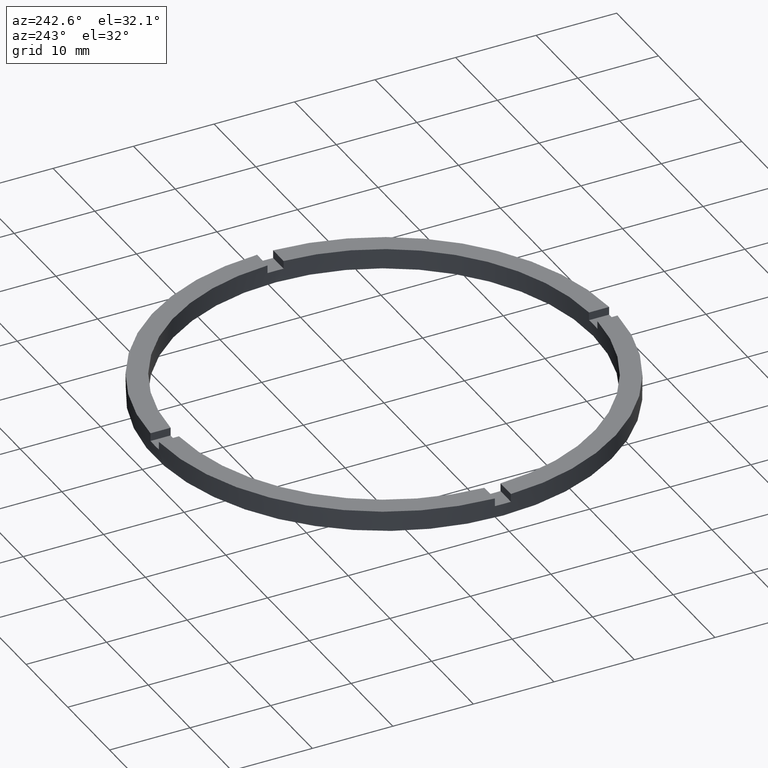
[diagram: clean part render]
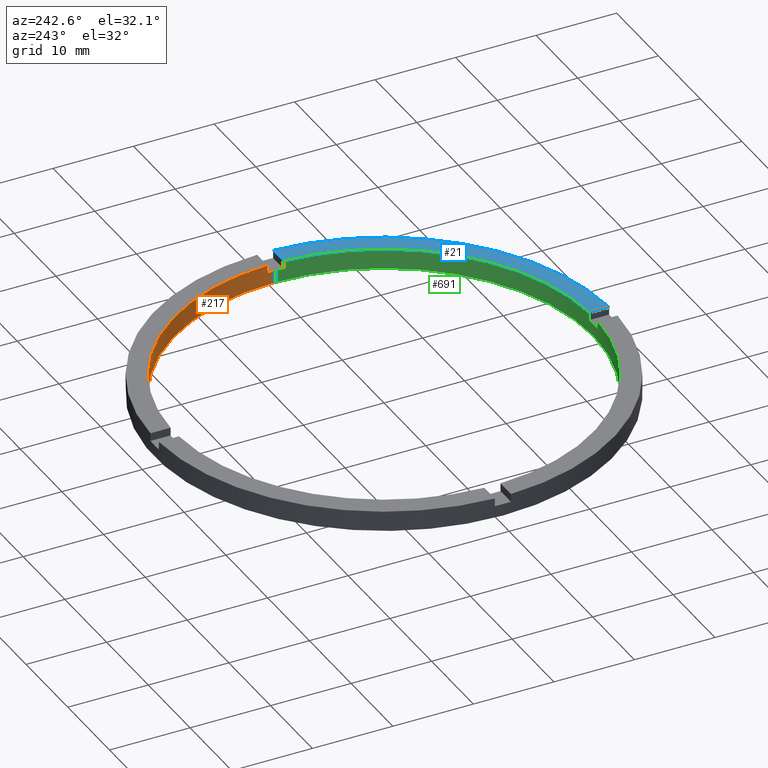
[diagram: same view with three faces highlighted in distinct colors, each labeled with its STEP entity id]
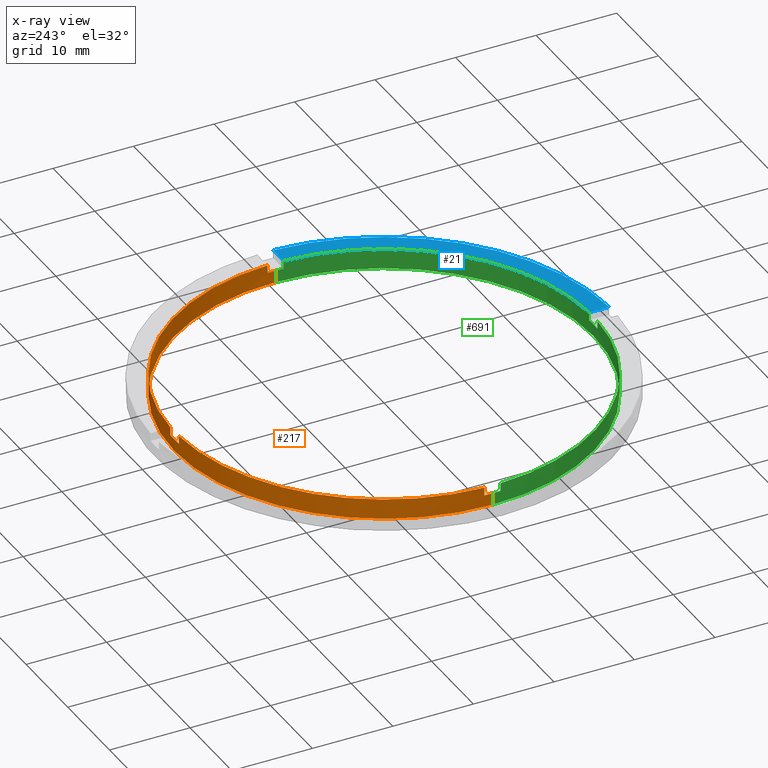
[diagram: x-ray of the same camera — body ghosted, the three highlighted faces saturated]
A machine part, auxiliary view with three faces highlighted in distinct colors.
The next image is the same camera in x-ray (body ghosted, the three faces saturated) — at least one of them is partly hidden behind the body in this view.
Their STEP definitions:

[orange] entity #217 — the highlighted cylindrical surface (partial cylindrical patch) has radius 26 mm, axis along (-0, -0, -1).
#15 = DIRECTION ( 'NONE',  ( 1.000000000000000000, 0.000000000000000000, 0.000000000000000000 ) ) ;
#24 = CARTESIAN_POINT ( 'NONE',  ( 26.00000000000000355, 3.184081677783118585E-15, 1.500000000000000000 ) ) ;
#33 = EDGE_CURVE ( 'NONE', #51, #586, #41, .T. ) ;
#41 = LINE ( 'NONE', #137, #301 ) ;
#50 = AXIS2_PLACEMENT_3D ( 'NONE', #88, #527, #15 ) ;
#51 = VERTEX_POINT ( 'NONE', #87 ) ;
#74 = VERTEX_POINT ( 'NONE', #720 ) ;
#76 = CARTESIAN_POINT ( 'NONE',  ( 25.98076211353317078, 0.9999999999998430145, 2.500000000000000000 ) ) ;
#87 = CARTESIAN_POINT ( 'NONE',  ( 0.9999999999999735767, 25.98076211353316367, 1.500000000000000000 ) ) ;
#88 = CARTESIAN_POINT ( 'NONE',  ( 0.000000000000000000, 0.000000000000000000, 2.500000000000000000 ) ) ;
#94 = CARTESIAN_POINT ( 'NONE',  ( 25.98076211353317078, 0.9999999999998430145, 1.500000000000000000 ) ) ;
#98 = VERTEX_POINT ( 'NONE', #24 ) ;
#102 = CARTESIAN_POINT ( 'NONE',  ( 25.98076211353317078, 0.9999999999998430145, 2.500000000000000000 ) ) ;
#106 = CARTESIAN_POINT ( 'NONE',  ( 0.000000000000000000, 0.000000000000000000, 0.000000000000000000 ) ) ;
#107 = ORIENTED_EDGE ( 'NONE', *, *, #553, .F. ) ;
#131 = VECTOR ( 'NONE', #222, 1000.000000000000000 ) ;
#137 = CARTESIAN_POINT ( 'NONE',  ( 0.9999999999999735767, 25.98076211353316367, 2.500000000000000000 ) ) ;
#142 = LINE ( 'NONE', #436, #683 ) ;
#154 = EDGE_CURVE ( 'NONE', #98, #354, #404, .T. ) ;
#172 = DIRECTION ( 'NONE',  ( 0.000000000000000000, 0.000000000000000000, 1.000000000000000000 ) ) ;
#176 = VECTOR ( 'NONE', #759, 1000.000000000000000 ) ;
#181 = VECTOR ( 'NONE', #347, 1000.000000000000000 ) ;
#188 = LINE ( 'NONE', #633, #176 ) ;
#202 = DIRECTION ( 'NONE',  ( -0.000000000000000000, -0.000000000000000000, -1.000000000000000000 ) ) ;
#212 = ORIENTED_EDGE ( 'NONE', *, *, #542, .T. ) ;
#217 = ADVANCED_FACE ( 'NONE', ( #418 ), #407, .F. ) ;
#218 = VERTEX_POINT ( 'NONE', #626 ) ;
#221 = DIRECTION ( 'NONE',  ( -0.000000000000000000, -0.000000000000000000, -1.000000000000000000 ) ) ;
#222 = DIRECTION ( 'NONE',  ( -0.000000000000000000, -0.000000000000000000, -1.000000000000000000 ) ) ;
#224 = CARTESIAN_POINT ( 'NONE',  ( -26.00000000000000355, 0.000000000000000000, 0.000000000000000000 ) ) ;
#230 = CARTESIAN_POINT ( 'NONE',  ( -1.000000000000026423, 25.98076211353316367, 1.500000000000000000 ) ) ;
#243 = CARTESIAN_POINT ( 'NONE',  ( 0.000000000000000000, 0.000000000000000000, 1.500000000000000000 ) ) ;
#256 = EDGE_CURVE ( 'NONE', #98, #74, #142, .T. ) ;
#257 = DIRECTION ( 'NONE',  ( -0.000000000000000000, -0.000000000000000000, -1.000000000000000000 ) ) ;
#265 = DIRECTION ( 'NONE',  ( 0.000000000000000000, 0.000000000000000000, 1.000000000000000000 ) ) ;
#268 = EDGE_CURVE ( 'NONE', #317, #617, #666, .T. ) ;
#274 = CARTESIAN_POINT ( 'NONE',  ( -26.00000000000000355, 0.000000000000000000, 1.500000000000000000 ) ) ;
#287 = AXIS2_PLACEMENT_3D ( 'NONE', #415, #172, #512 ) ;
#289 = CARTESIAN_POINT ( 'NONE',  ( -1.000000000000026423, 25.98076211353316367, 2.500000000000000000 ) ) ;
#301 = VECTOR ( 'NONE', #265, 1000.000000000000000 ) ;
#306 = ORIENTED_EDGE ( 'NONE', *, *, #33, .F. ) ;
#312 = EDGE_LOOP ( 'NONE', ( #377, #611, #107, #376, #306, #352, #567, #489, #358, #212, #369, #364 ) ) ;
#317 = VERTEX_POINT ( 'NONE', #274 ) ;
#343 = DIRECTION ( 'NONE',  ( 1.000000000000000000, 0.000000000000000000, 0.000000000000000000 ) ) ;
#346 = EDGE_CURVE ( 'NONE', #769, #218, #416, .T. ) ;
#347 = DIRECTION ( 'NONE',  ( -0.000000000000000000, -0.000000000000000000, -1.000000000000000000 ) ) ;
#352 = ORIENTED_EDGE ( 'NONE', *, *, #481, .T. ) ;
#354 = VERTEX_POINT ( 'NONE', #94 ) ;
#357 = VERTEX_POINT ( 'NONE', #230 ) ;
#358 = ORIENTED_EDGE ( 'NONE', *, *, #605, .F. ) ;
#364 = ORIENTED_EDGE ( 'NONE', *, *, #525, .F. ) ;
#368 = VERTEX_POINT ( 'NONE', #102 ) ;
#369 = ORIENTED_EDGE ( 'NONE', *, *, #268, .T. ) ;
#376 = ORIENTED_EDGE ( 'NONE', *, *, #579, .T. ) ;
#377 = ORIENTED_EDGE ( 'NONE', *, *, #256, .F. ) ;
#384 = AXIS2_PLACEMENT_3D ( 'NONE', #106, #492, #343 ) ;
#396 = DIRECTION ( 'NONE',  ( 1.000000000000000000, 0.000000000000000000, 0.000000000000000000 ) ) ;
#404 = CIRCLE ( 'NONE', #540, 26.00000000000000355 ) ;
#407 = CYLINDRICAL_SURFACE ( 'NONE', #770, 26.00000000000000355 ) ;
#415 = CARTESIAN_POINT ( 'NONE',  ( 0.000000000000000000, 0.000000000000000000, 1.500000000000000000 ) ) ;
#416 = CIRCLE ( 'NONE', #50, 26.00000000000000355 ) ;
#418 = FACE_OUTER_BOUND ( 'NONE', #312, .T. ) ;
#419 = CARTESIAN_POINT ( 'NONE',  ( -1.000000000000026423, 25.98076211353316367, 2.500000000000000000 ) ) ;
#436 = CARTESIAN_POINT ( 'NONE',  ( 26.00000000000000355, 3.184081677783118585E-15, 2.500000000000000000 ) ) ;
#437 = DIRECTION ( 'NONE',  ( 0.000000000000000000, 0.000000000000000000, 1.000000000000000000 ) ) ;
#449 = LINE ( 'NONE', #76, #705 ) ;
#457 = LINE ( 'NONE', #289, #181 ) ;
#481 = EDGE_CURVE ( 'NONE', #51, #357, #671, .T. ) ;
#487 = DIRECTION ( 'NONE',  ( 0.000000000000000000, 0.000000000000000000, 1.000000000000000000 ) ) ;
#489 = ORIENTED_EDGE ( 'NONE', *, *, #346, .T. ) ;
#492 = DIRECTION ( 'NONE',  ( 0.000000000000000000, 0.000000000000000000, 1.000000000000000000 ) ) ;
#512 = DIRECTION ( 'NONE',  ( 1.000000000000000000, 0.000000000000000000, 0.000000000000000000 ) ) ;
#524 = CARTESIAN_POINT ( 'NONE',  ( 0.9999999999999735767, 25.98076211353316367, 2.500000000000000000 ) ) ;
#525 = EDGE_CURVE ( 'NONE', #74, #617, #696, .T. ) ;
#527 = DIRECTION ( 'NONE',  ( 0.000000000000000000, 0.000000000000000000, 1.000000000000000000 ) ) ;
#532 = DIRECTION ( 'NONE',  ( 1.000000000000000000, 0.000000000000000000, 0.000000000000000000 ) ) ;
#540 = AXIS2_PLACEMENT_3D ( 'NONE', #608, #437, #745 ) ;
#541 = DIRECTION ( 'NONE',  ( -1.000000000000000000, 0.000000000000000000, 0.000000000000000000 ) ) ;
#542 = EDGE_CURVE ( 'NONE', #610, #317, #688, .T. ) ;
#552 = CARTESIAN_POINT ( 'NONE',  ( -26.00000000000000355, 0.000000000000000000, 2.500000000000000000 ) ) ;
#553 = EDGE_CURVE ( 'NONE', #368, #354, #449, .T. ) ;
#567 = ORIENTED_EDGE ( 'NONE', *, *, #757, .F. ) ;
#573 = CARTESIAN_POINT ( 'NONE',  ( -25.98076211353316367, 0.9999999999999733546, 1.500000000000000000 ) ) ;
#579 = EDGE_CURVE ( 'NONE', #368, #586, #709, .T. ) ;
#586 = VERTEX_POINT ( 'NONE', #524 ) ;
#605 = EDGE_CURVE ( 'NONE', #610, #218, #188, .T. ) ;
#608 = CARTESIAN_POINT ( 'NONE',  ( 0.000000000000000000, 0.000000000000000000, 1.500000000000000000 ) ) ;
#610 = VERTEX_POINT ( 'NONE', #573 ) ;
#611 = ORIENTED_EDGE ( 'NONE', *, *, #154, .T. ) ;
#617 = VERTEX_POINT ( 'NONE', #224 ) ;
#626 = CARTESIAN_POINT ( 'NONE',  ( -25.98076211353316367, 0.9999999999999733546, 2.500000000000000000 ) ) ;
#628 = AXIS2_PLACEMENT_3D ( 'NONE', #243, #778, #532 ) ;
#633 = CARTESIAN_POINT ( 'NONE',  ( -25.98076211353316367, 0.9999999999999733546, 2.500000000000000000 ) ) ;
#666 = LINE ( 'NONE', #552, #131 ) ;
#669 = AXIS2_PLACEMENT_3D ( 'NONE', #716, #487, #396 ) ;
#671 = CIRCLE ( 'NONE', #628, 26.00000000000000355 ) ;
#683 = VECTOR ( 'NONE', #257, 1000.000000000000000 ) ;
#688 = CIRCLE ( 'NONE', #287, 26.00000000000000355 ) ;
#696 = CIRCLE ( 'NONE', #384, 26.00000000000000355 ) ;
#705 = VECTOR ( 'NONE', #221, 1000.000000000000000 ) ;
#709 = CIRCLE ( 'NONE', #669, 26.00000000000000355 ) ;
#716 = CARTESIAN_POINT ( 'NONE',  ( 0.000000000000000000, 0.000000000000000000, 2.500000000000000000 ) ) ;
#720 = CARTESIAN_POINT ( 'NONE',  ( 26.00000000000000355, 3.184081677783118585E-15, 0.000000000000000000 ) ) ;
#745 = DIRECTION ( 'NONE',  ( 1.000000000000000000, 0.000000000000000000, 0.000000000000000000 ) ) ;
#757 = EDGE_CURVE ( 'NONE', #769, #357, #457, .T. ) ;
#759 = DIRECTION ( 'NONE',  ( 0.000000000000000000, 0.000000000000000000, 1.000000000000000000 ) ) ;
#769 = VERTEX_POINT ( 'NONE', #419 ) ;
#770 = AXIS2_PLACEMENT_3D ( 'NONE', #783, #202, #541 ) ;
#778 = DIRECTION ( 'NONE',  ( 0.000000000000000000, -0.000000000000000000, 1.000000000000000000 ) ) ;
#783 = CARTESIAN_POINT ( 'NONE',  ( 0.000000000000000000, 0.000000000000000000, 2.500000000000000000 ) ) ;

[blue] entity #21 — the highlighted planar face has unit normal (0, 0, 1).
#3 = DIRECTION ( 'NONE',  ( -1.301042606982605567E-16, 1.000000000000000000, -0.000000000000000000 ) ) ;
#8 = DIRECTION ( 'NONE',  ( 0.000000000000000000, 0.000000000000000000, 1.000000000000000000 ) ) ;
#21 = ADVANCED_FACE ( 'NONE', ( #572 ), #304, .T. ) ;
#26 = LINE ( 'NONE', #310, #538 ) ;
#46 = DIRECTION ( 'NONE',  ( 1.000000000000000000, 0.000000000000000000, 0.000000000000000000 ) ) ;
#52 = EDGE_CURVE ( 'NONE', #743, #331, #26, .T. ) ;
#57 = VERTEX_POINT ( 'NONE', #479 ) ;
#68 = DIRECTION ( 'NONE',  ( 0.000000000000000000, 0.000000000000000000, 1.000000000000000000 ) ) ;
#85 = ORIENTED_EDGE ( 'NONE', *, *, #146, .F. ) ;
#96 = ORIENTED_EDGE ( 'NONE', *, *, #545, .F. ) ;
#134 = AXIS2_PLACEMENT_3D ( 'NONE', #528, #8, #335 ) ;
#146 = EDGE_CURVE ( 'NONE', #57, #299, #676, .T. ) ;
#148 = VECTOR ( 'NONE', #3, 1000.000000000000000 ) ;
#183 = DIRECTION ( 'NONE',  ( 0.000000000000000000, 0.000000000000000000, 1.000000000000000000 ) ) ;
#186 = CIRCLE ( 'NONE', #134, 26.00000000000000355 ) ;
#195 = CARTESIAN_POINT ( 'NONE',  ( 25.98076211353315657, -1.000000000000156986, 2.500000000000000000 ) ) ;
#223 = CARTESIAN_POINT ( 'NONE',  ( 0.000000000000000000, 0.000000000000000000, 2.500000000000000000 ) ) ;
#263 = DIRECTION ( 'NONE',  ( 1.000000000000000000, 4.336808689942018352E-17, 0.000000000000000000 ) ) ;
#299 = VERTEX_POINT ( 'NONE', #513 ) ;
#303 = ORIENTED_EDGE ( 'NONE', *, *, #739, .T. ) ;
#304 = PLANE ( 'NONE',  #417 ) ;
#310 = CARTESIAN_POINT ( 'NONE',  ( 18.50000000000000000, -1.000000000000157208, 2.500000000000000000 ) ) ;
#331 = VERTEX_POINT ( 'NONE', #491 ) ;
#335 = DIRECTION ( 'NONE',  ( 1.000000000000000000, 0.000000000000000000, 0.000000000000000000 ) ) ;
#417 = AXIS2_PLACEMENT_3D ( 'NONE', #223, #68, #754 ) ;
#472 = EDGE_LOOP ( 'NONE', ( #636, #96, #85, #303 ) ) ;
#479 = CARTESIAN_POINT ( 'NONE',  ( 0.9999999999998404610, -28.48245073725223264, 2.500000000000000000 ) ) ;
#491 = CARTESIAN_POINT ( 'NONE',  ( 28.48245073725222554, -1.000000000000156763, 2.500000000000000000 ) ) ;
#506 = AXIS2_PLACEMENT_3D ( 'NONE', #648, #183, #46 ) ;
#513 = CARTESIAN_POINT ( 'NONE',  ( 0.9999999999998402389, -25.98076211353317078, 2.500000000000000000 ) ) ;
#528 = CARTESIAN_POINT ( 'NONE',  ( 0.000000000000000000, 0.000000000000000000, 2.500000000000000000 ) ) ;
#538 = VECTOR ( 'NONE', #263, 1000.000000000000000 ) ;
#545 = EDGE_CURVE ( 'NONE', #299, #743, #186, .T. ) ;
#572 = FACE_OUTER_BOUND ( 'NONE', #472, .T. ) ;
#596 = CARTESIAN_POINT ( 'NONE',  ( 0.9999999999998391287, -18.50000000000018474, 2.500000000000000000 ) ) ;
#636 = ORIENTED_EDGE ( 'NONE', *, *, #52, .F. ) ;
#648 = CARTESIAN_POINT ( 'NONE',  ( 0.000000000000000000, 0.000000000000000000, 2.500000000000000000 ) ) ;
#676 = LINE ( 'NONE', #596, #148 ) ;
#694 = CIRCLE ( 'NONE', #506, 28.50000000000000000 ) ;
#739 = EDGE_CURVE ( 'NONE', #57, #331, #694, .T. ) ;
#743 = VERTEX_POINT ( 'NONE', #195 ) ;
#754 = DIRECTION ( 'NONE',  ( 1.000000000000000000, 0.000000000000000000, -0.000000000000000000 ) ) ;

[green] entity #691 — the highlighted cylindrical surface (partial cylindrical patch) has radius 26 mm, axis along (-0, -0, -1).
#8 = DIRECTION ( 'NONE',  ( 0.000000000000000000, 0.000000000000000000, 1.000000000000000000 ) ) ;
#24 = CARTESIAN_POINT ( 'NONE',  ( 26.00000000000000355, 3.184081677783118585E-15, 1.500000000000000000 ) ) ;
#27 = ORIENTED_EDGE ( 'NONE', *, *, #177, .T. ) ;
#34 = DIRECTION ( 'NONE',  ( 0.000000000000000000, 0.000000000000000000, 1.000000000000000000 ) ) ;
#37 = DIRECTION ( 'NONE',  ( -0.000000000000000000, -0.000000000000000000, -1.000000000000000000 ) ) ;
#54 = CARTESIAN_POINT ( 'NONE',  ( -25.98076211353316367, -1.000000000000026645, 1.500000000000000000 ) ) ;
#58 = VERTEX_POINT ( 'NONE', #564 ) ;
#59 = ORIENTED_EDGE ( 'NONE', *, *, #431, .F. ) ;
#65 = ORIENTED_EDGE ( 'NONE', *, *, #268, .F. ) ;
#66 = ORIENTED_EDGE ( 'NONE', *, *, #256, .T. ) ;
#74 = VERTEX_POINT ( 'NONE', #720 ) ;
#75 = VERTEX_POINT ( 'NONE', #485 ) ;
#81 = AXIS2_PLACEMENT_3D ( 'NONE', #665, #680, #122 ) ;
#98 = VERTEX_POINT ( 'NONE', #24 ) ;
#114 = EDGE_LOOP ( 'NONE', ( #647, #66, #59, #65, #321, #251, #517, #569, #27, #518, #327, #584 ) ) ;
#115 = DIRECTION ( 'NONE',  ( -1.000000000000000000, 0.000000000000000000, 0.000000000000000000 ) ) ;
#117 = EDGE_CURVE ( 'NONE', #317, #712, #682, .T. ) ;
#119 = CARTESIAN_POINT ( 'NONE',  ( 0.000000000000000000, 0.000000000000000000, 2.500000000000000000 ) ) ;
#122 = DIRECTION ( 'NONE',  ( 1.000000000000000000, 0.000000000000000000, 0.000000000000000000 ) ) ;
#129 = CARTESIAN_POINT ( 'NONE',  ( 0.000000000000000000, 0.000000000000000000, 2.500000000000000000 ) ) ;
#131 = VECTOR ( 'NONE', #222, 1000.000000000000000 ) ;
#133 = CIRCLE ( 'NONE', #267, 26.00000000000000355 ) ;
#134 = AXIS2_PLACEMENT_3D ( 'NONE', #528, #8, #335 ) ;
#141 = VECTOR ( 'NONE', #460, 1000.000000000000000 ) ;
#142 = LINE ( 'NONE', #436, #683 ) ;
#143 = CIRCLE ( 'NONE', #291, 26.00000000000000355 ) ;
#150 = CIRCLE ( 'NONE', #351, 26.00000000000000355 ) ;
#162 = VECTOR ( 'NONE', #34, 1000.000000000000000 ) ;
#167 = CYLINDRICAL_SURFACE ( 'NONE', #529, 26.00000000000000355 ) ;
#170 = AXIS2_PLACEMENT_3D ( 'NONE', #507, #748, #375 ) ;
#173 = EDGE_CURVE ( 'NONE', #75, #484, #143, .T. ) ;
#177 = EDGE_CURVE ( 'NONE', #326, #342, #413, .T. ) ;
#178 = FACE_OUTER_BOUND ( 'NONE', #114, .T. ) ;
#186 = CIRCLE ( 'NONE', #134, 26.00000000000000355 ) ;
#195 = CARTESIAN_POINT ( 'NONE',  ( 25.98076211353315657, -1.000000000000156986, 2.500000000000000000 ) ) ;
#205 = DIRECTION ( 'NONE',  ( 1.000000000000000000, 0.000000000000000000, 0.000000000000000000 ) ) ;
#210 = DIRECTION ( 'NONE',  ( -0.000000000000000000, -0.000000000000000000, -1.000000000000000000 ) ) ;
#222 = DIRECTION ( 'NONE',  ( -0.000000000000000000, -0.000000000000000000, -1.000000000000000000 ) ) ;
#224 = CARTESIAN_POINT ( 'NONE',  ( -26.00000000000000355, 0.000000000000000000, 0.000000000000000000 ) ) ;
#227 = CARTESIAN_POINT ( 'NONE',  ( -1.000000000000159872, -25.98076211353315657, 1.500000000000000000 ) ) ;
#231 = EDGE_CURVE ( 'NONE', #75, #712, #420, .T. ) ;
#251 = ORIENTED_EDGE ( 'NONE', *, *, #231, .F. ) ;
#256 = EDGE_CURVE ( 'NONE', #98, #74, #142, .T. ) ;
#257 = DIRECTION ( 'NONE',  ( -0.000000000000000000, -0.000000000000000000, -1.000000000000000000 ) ) ;
#267 = AXIS2_PLACEMENT_3D ( 'NONE', #278, #737, #497 ) ;
#268 = EDGE_CURVE ( 'NONE', #317, #617, #666, .T. ) ;
#274 = CARTESIAN_POINT ( 'NONE',  ( -26.00000000000000355, 0.000000000000000000, 1.500000000000000000 ) ) ;
#278 = CARTESIAN_POINT ( 'NONE',  ( 0.000000000000000000, 0.000000000000000000, 1.500000000000000000 ) ) ;
#282 = CARTESIAN_POINT ( 'NONE',  ( 25.98076211353315657, -1.000000000000156986, 2.500000000000000000 ) ) ;
#286 = DIRECTION ( 'NONE',  ( 0.000000000000000000, 0.000000000000000000, 1.000000000000000000 ) ) ;
#291 = AXIS2_PLACEMENT_3D ( 'NONE', #129, #286, #205 ) ;
#299 = VERTEX_POINT ( 'NONE', #513 ) ;
#317 = VERTEX_POINT ( 'NONE', #274 ) ;
#321 = ORIENTED_EDGE ( 'NONE', *, *, #117, .T. ) ;
#326 = VERTEX_POINT ( 'NONE', #227 ) ;
#327 = ORIENTED_EDGE ( 'NONE', *, *, #545, .T. ) ;
#335 = DIRECTION ( 'NONE',  ( 1.000000000000000000, 0.000000000000000000, 0.000000000000000000 ) ) ;
#342 = VERTEX_POINT ( 'NONE', #765 ) ;
#351 = AXIS2_PLACEMENT_3D ( 'NONE', #360, #646, #724 ) ;
#360 = CARTESIAN_POINT ( 'NONE',  ( 0.000000000000000000, 0.000000000000000000, 0.000000000000000000 ) ) ;
#375 = DIRECTION ( 'NONE',  ( 1.000000000000000000, 0.000000000000000000, 0.000000000000000000 ) ) ;
#383 = CARTESIAN_POINT ( 'NONE',  ( 0.9999999999998402389, -25.98076211353317078, 2.500000000000000000 ) ) ;
#403 = VECTOR ( 'NONE', #210, 1000.000000000000000 ) ;
#413 = CIRCLE ( 'NONE', #170, 26.00000000000000355 ) ;
#420 = LINE ( 'NONE', #672, #141 ) ;
#431 = EDGE_CURVE ( 'NONE', #617, #74, #150, .T. ) ;
#436 = CARTESIAN_POINT ( 'NONE',  ( 26.00000000000000355, 3.184081677783118585E-15, 2.500000000000000000 ) ) ;
#442 = VECTOR ( 'NONE', #726, 1000.000000000000000 ) ;
#460 = DIRECTION ( 'NONE',  ( -0.000000000000000000, -0.000000000000000000, -1.000000000000000000 ) ) ;
#470 = EDGE_CURVE ( 'NONE', #58, #98, #133, .T. ) ;
#484 = VERTEX_POINT ( 'NONE', #501 ) ;
#485 = CARTESIAN_POINT ( 'NONE',  ( -25.98076211353316367, -1.000000000000026645, 2.500000000000000000 ) ) ;
#496 = CARTESIAN_POINT ( 'NONE',  ( -1.000000000000159872, -25.98076211353315657, 2.500000000000000000 ) ) ;
#497 = DIRECTION ( 'NONE',  ( 1.000000000000000000, 0.000000000000000000, 0.000000000000000000 ) ) ;
#501 = CARTESIAN_POINT ( 'NONE',  ( -1.000000000000159872, -25.98076211353315657, 2.500000000000000000 ) ) ;
#505 = EDGE_CURVE ( 'NONE', #299, #342, #654, .T. ) ;
#507 = CARTESIAN_POINT ( 'NONE',  ( 0.000000000000000000, 0.000000000000000000, 1.500000000000000000 ) ) ;
#513 = CARTESIAN_POINT ( 'NONE',  ( 0.9999999999998402389, -25.98076211353317078, 2.500000000000000000 ) ) ;
#517 = ORIENTED_EDGE ( 'NONE', *, *, #173, .T. ) ;
#518 = ORIENTED_EDGE ( 'NONE', *, *, #505, .F. ) ;
#528 = CARTESIAN_POINT ( 'NONE',  ( 0.000000000000000000, 0.000000000000000000, 2.500000000000000000 ) ) ;
#529 = AXIS2_PLACEMENT_3D ( 'NONE', #119, #37, #115 ) ;
#545 = EDGE_CURVE ( 'NONE', #299, #743, #186, .T. ) ;
#552 = CARTESIAN_POINT ( 'NONE',  ( -26.00000000000000355, 0.000000000000000000, 2.500000000000000000 ) ) ;
#564 = CARTESIAN_POINT ( 'NONE',  ( 25.98076211353315657, -1.000000000000156986, 1.500000000000000000 ) ) ;
#569 = ORIENTED_EDGE ( 'NONE', *, *, #704, .F. ) ;
#584 = ORIENTED_EDGE ( 'NONE', *, *, #762, .F. ) ;
#617 = VERTEX_POINT ( 'NONE', #224 ) ;
#646 = DIRECTION ( 'NONE',  ( 0.000000000000000000, 0.000000000000000000, 1.000000000000000000 ) ) ;
#647 = ORIENTED_EDGE ( 'NONE', *, *, #470, .T. ) ;
#654 = LINE ( 'NONE', #383, #403 ) ;
#665 = CARTESIAN_POINT ( 'NONE',  ( 0.000000000000000000, 0.000000000000000000, 1.500000000000000000 ) ) ;
#666 = LINE ( 'NONE', #552, #131 ) ;
#672 = CARTESIAN_POINT ( 'NONE',  ( -25.98076211353316367, -1.000000000000026645, 2.500000000000000000 ) ) ;
#680 = DIRECTION ( 'NONE',  ( 0.000000000000000000, 0.000000000000000000, 1.000000000000000000 ) ) ;
#682 = CIRCLE ( 'NONE', #81, 26.00000000000000355 ) ;
#683 = VECTOR ( 'NONE', #257, 1000.000000000000000 ) ;
#691 = ADVANCED_FACE ( 'NONE', ( #178 ), #167, .F. ) ;
#700 = LINE ( 'NONE', #496, #162 ) ;
#704 = EDGE_CURVE ( 'NONE', #326, #484, #700, .T. ) ;
#712 = VERTEX_POINT ( 'NONE', #54 ) ;
#719 = LINE ( 'NONE', #282, #442 ) ;
#720 = CARTESIAN_POINT ( 'NONE',  ( 26.00000000000000355, 3.184081677783118585E-15, 0.000000000000000000 ) ) ;
#724 = DIRECTION ( 'NONE',  ( 1.000000000000000000, 0.000000000000000000, 0.000000000000000000 ) ) ;
#726 = DIRECTION ( 'NONE',  ( 0.000000000000000000, 0.000000000000000000, 1.000000000000000000 ) ) ;
#737 = DIRECTION ( 'NONE',  ( 0.000000000000000000, 0.000000000000000000, 1.000000000000000000 ) ) ;
#743 = VERTEX_POINT ( 'NONE', #195 ) ;
#748 = DIRECTION ( 'NONE',  ( -0.000000000000000000, 0.000000000000000000, 1.000000000000000000 ) ) ;
#762 = EDGE_CURVE ( 'NONE', #58, #743, #719, .T. ) ;
#765 = CARTESIAN_POINT ( 'NONE',  ( 0.9999999999998402389, -25.98076211353317078, 1.500000000000000000 ) ) ;